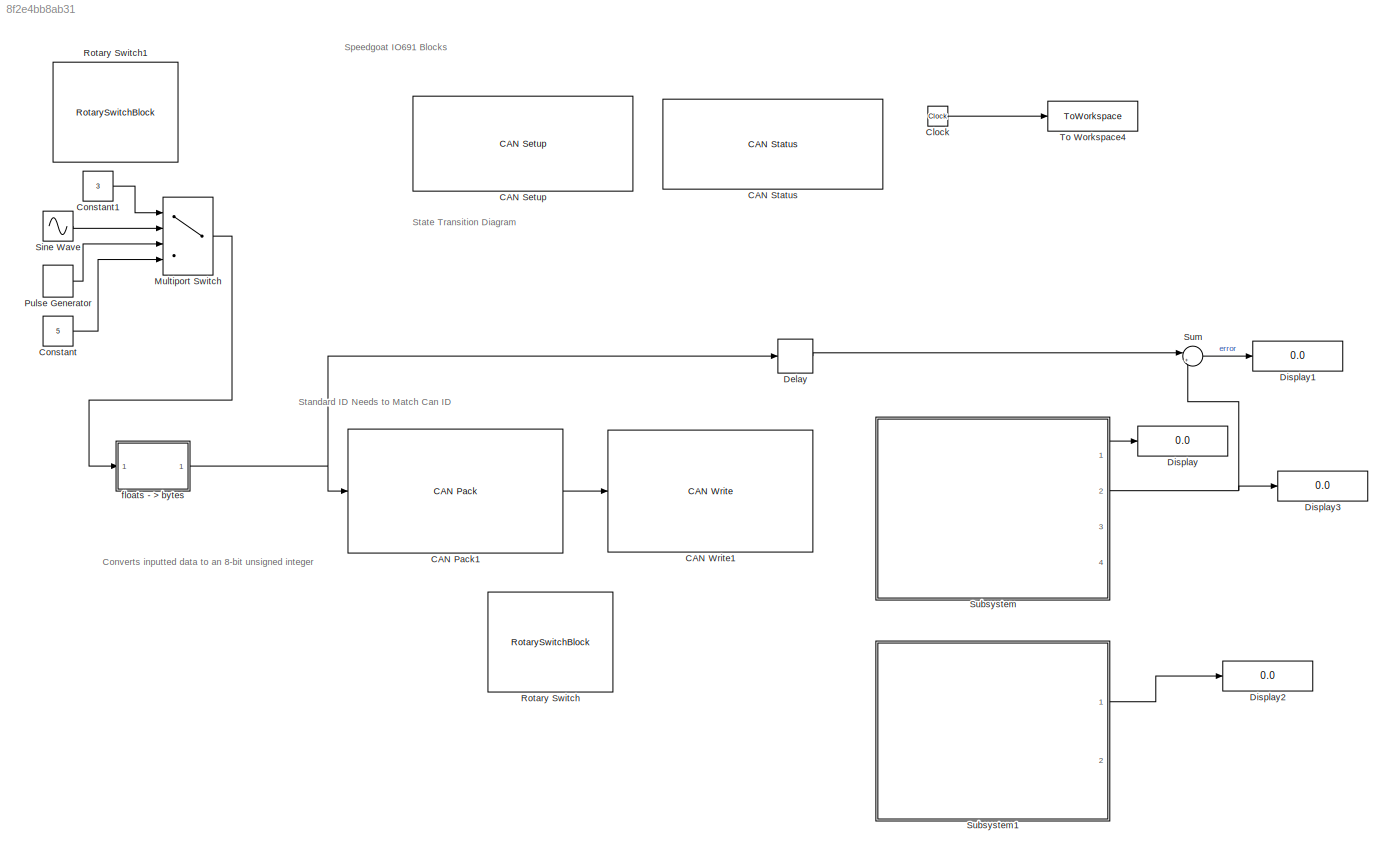
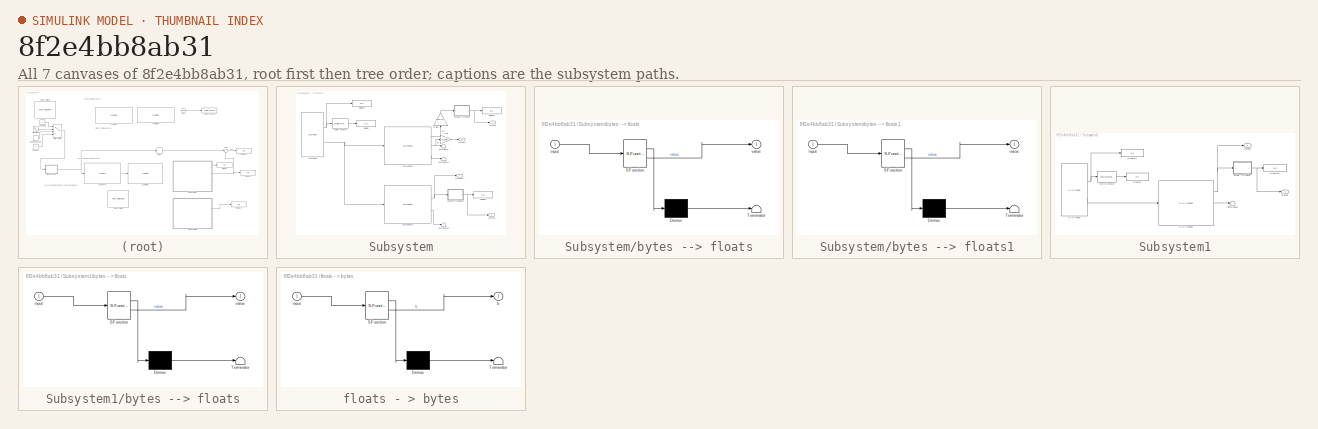
[diagram: thumbnail index - all 7 canvases of the model, root first then tree order]
MODEL slx_8f2e4bb8ab31
KIND model
CONFIG AbsTol = auto
CONFIG EnableMultiTasking = off
CONFIG FixedStep = .005
CONFIG MaxStep = auto
CONFIG MinStep = auto
CONFIG RelTol = 1e-6
CONFIG SampleTimeConstraint = Unconstrained
CONFIG SolverName = FixedStepAuto
CONFIG StartTime = 0.0
CONFIG StopTime = inf
WORKSPACE source: mxarray member
WORKSPACE DEV_ID = 3
BLOCK [Reference] CAN Pack1  REF=canmsglib/CAN Pack
  Ports = [1, 1]
  SourceBlock = canmsglib/CAN Pack
  SourceProductBaseCode = XP,ME,VN
  SourceType = CAN Pack
BLOCK [Reference] CAN Setup   REF=speedgoatlib_IO691/Legacy/CAN Setup 
  Ports = []
  SourceBlock = speedgoatlib_IO691/Legacy/CAN Setup
  SourceProductName = Simulink Real-Time: Speedgoat I/O Blockset
  SourceType = setup_IO691
BLOCK [Reference] CAN Status  REF=speedgoatlib_IO691/Legacy/CAN Status
  Ports = []
  SourceBlock = speedgoatlib_IO691/Legacy/CAN Status
  SourceProductName = Simulink Real-Time: Speedgoat I/O Blockset
  SourceType = status_IO691
  UserDataPersistent = on
BLOCK [Reference] CAN Write1  REF=speedgoatlib_IO691/Legacy/CAN Write
  Ports = [1]
  SourceBlock = speedgoatlib_IO691/Legacy/CAN Write
  SourceProductName = Simulink Real-Time: Speedgoat I/O Blockset
  SourceType = write_IO691
BLOCK [Clock] Clock
BLOCK [Constant] Constant
  Value = 5
BLOCK [Constant] Constant1
  Value = 3
BLOCK [Delay] Delay
  DelayLength = 1
  InputPortMap = u0
  Ports = [1, 1]
BLOCK [Display] Display
  Decimation = 1
  Ports = [1]
BLOCK [Display] Display1
  Decimation = 1
  Ports = [1]
BLOCK [Display] Display2
  Commented = on
  Decimation = 1
  Ports = [1]
BLOCK [Display] Display3
  Decimation = 1
  Ports = [1]
BLOCK [MultiPortSwitch] Multiport Switch
  InputSameDT = off
  Ports = [4, 1]
  SaturateOnIntegerOverflow = off
BLOCK [DiscretePulseGenerator] Pulse Generator
  Amplitude = 5
  Period = 5
  Ports = [0, 1]
  PulseType = Time based
BLOCK [RotarySwitchBlock] Rotary Switch
BLOCK [RotarySwitchBlock] Rotary Switch1
BLOCK [Sin] Sine Wave
  Amplitude = 10
  Ports = [0, 1]
  SampleTime = 0
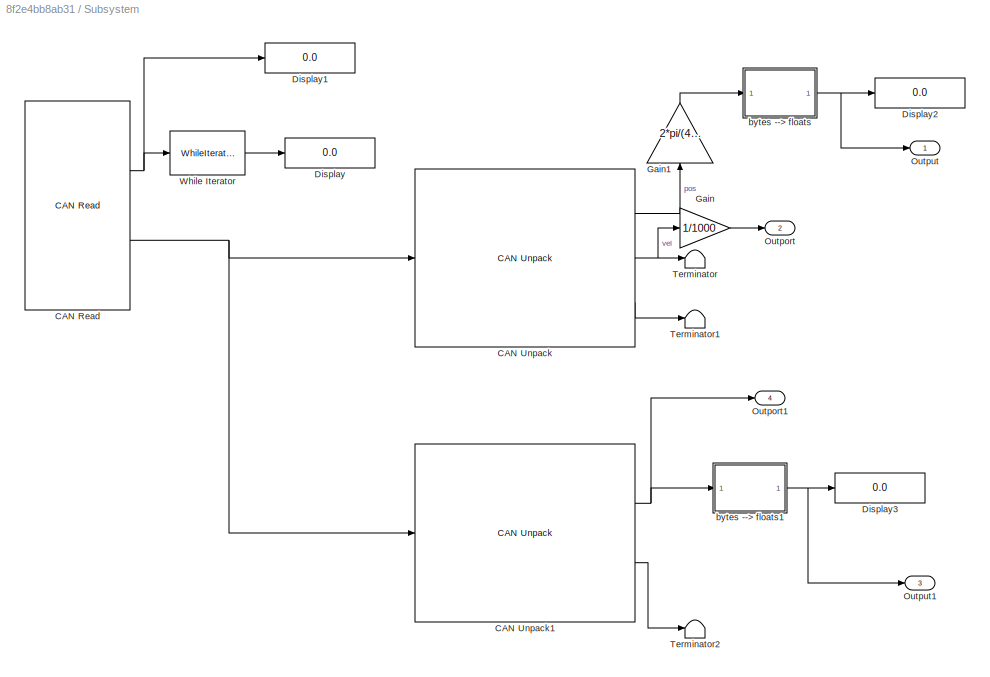
BLOCK [SubSystem] Subsystem
  Ports = [0, 4]
  RequestExecContextInheritance = off
BLOCK [Reference] Subsystem/CAN Read  REF=speedgoatlib_IO691/Legacy/CAN Read
  Ports = [0, 2]
  SourceBlock = speedgoatlib_IO691/Legacy/CAN Read
  SourceProductName = Simulink Real-Time: Speedgoat I/O Blockset
  SourceType = read_IO691
BLOCK [Reference] Subsystem/CAN Unpack  REF=canmsglib/CAN Unpack
  Ports = [1, 3]
  SourceBlock = canmsglib/CAN Unpack
  SourceProductBaseCode = XP,ME,VN
  SourceType = CAN Unpack
BLOCK [Reference] Subsystem/CAN Unpack1  REF=canmsglib/CAN Unpack
  Ports = [1, 2]
  SourceBlock = canmsglib/CAN Unpack
  SourceProductBaseCode = XP,ME,VN
  SourceType = CAN Unpack
BLOCK [Display] Subsystem/Display
  Decimation = 1
  Ports = [1]
BLOCK [Display] Subsystem/Display1
  Decimation = 1
  Ports = [1]
BLOCK [Display] Subsystem/Display2
  Decimation = 1
  Ports = [1]
BLOCK [Display] Subsystem/Display3
  Decimation = 1
  Ports = [1]
BLOCK [Gain] Subsystem/Gain
  Gain = 1/1000
BLOCK [Gain] Subsystem/Gain1
  Gain = 2*pi/(4*360)
  NameLocation = right
BLOCK [Outport] Subsystem/Outport
  Port = 2
BLOCK [Outport] Subsystem/Outport1
  Port = 4
BLOCK [Outport] Subsystem/Output
BLOCK [Outport] Subsystem/Output1
  Port = 3
BLOCK [Terminator] Subsystem/Terminator
BLOCK [Terminator] Subsystem/Terminator1
BLOCK [Terminator] Subsystem/Terminator2
BLOCK [WhileIterator] Subsystem/While Iterator
  MaxIters = -1
  Ports = [1, 1]
  ResetStates = reset
  ShowIterationPort = on
  WhileBlockType = do-while
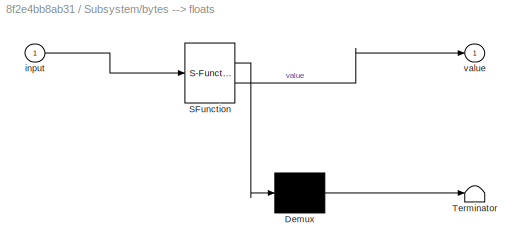
BLOCK [SubSystem] Subsystem/bytes --> floats
  Commented = through
  ErrorFcn = Stateflow.Translate.translate
  PermitHierarchicalResolution = ExplicitOnly
  Ports = [1, 1]
  RequestExecContextInheritance = off
  SFBlockType = MATLAB Function
  TreatAsAtomicUnit = on
BLOCK [Demux] Subsystem/bytes --> floats/ Demux 
  Outputs = 1
  Ports = [1, 1]
BLOCK [S-Function] Subsystem/bytes --> floats/ SFunction 
  EnableBusSupport = on
  FunctionName = sf_sfun
  PortCounts = [1 2]
  Ports = [1, 2]
  SFcnIsStateOwnerBlock = off
  SFunctionDeploymentMode = off
  Tag = Stateflow S-Function 1
BLOCK [Terminator] Subsystem/bytes --> floats/ Terminator 
BLOCK [Inport] Subsystem/bytes --> floats/input
BLOCK [Outport] Subsystem/bytes --> floats/value
BLOCK [SubSystem] Subsystem/bytes --> floats1
  ErrorFcn = Stateflow.Translate.translate
  PermitHierarchicalResolution = ExplicitOnly
  Ports = [1, 1]
  RequestExecContextInheritance = off
  SFBlockType = MATLAB Function
  TreatAsAtomicUnit = on
BLOCK [Demux] Subsystem/bytes --> floats1/ Demux 
  Outputs = 1
  Ports = [1, 1]
BLOCK [S-Function] Subsystem/bytes --> floats1/ SFunction 
  EnableBusSupport = on
  FunctionName = sf_sfun
  PortCounts = [1 2]
  Ports = [1, 2]
  SFcnIsStateOwnerBlock = off
  SFunctionDeploymentMode = off
  Tag = Stateflow S-Function 4
BLOCK [Terminator] Subsystem/bytes --> floats1/ Terminator 
BLOCK [Inport] Subsystem/bytes --> floats1/input
BLOCK [Outport] Subsystem/bytes --> floats1/value
BLOCK [SubSystem] Subsystem1
  Commented = on
  Ports = [0, 2]
  RequestExecContextInheritance = off
BLOCK [Reference] Subsystem1/CAN Read  REF=speedgoatlib_IO691/Legacy/CAN Read
  Ports = [0, 2]
  SourceBlock = speedgoatlib_IO691/Legacy/CAN Read
  SourceProductName = Simulink Real-Time: Speedgoat I/O Blockset
  SourceType = read_IO691
BLOCK [Reference] Subsystem1/CAN Unpack  REF=canmsglib/CAN Unpack
  Ports = [1, 3]
  SourceBlock = canmsglib/CAN Unpack
  SourceProductBaseCode = XP,ME,VN
  SourceType = CAN Unpack
BLOCK [Display] Subsystem1/Display
  Decimation = 1
  Ports = [1]
BLOCK [Display] Subsystem1/Display1
  Decimation = 1
  Ports = [1]
BLOCK [Display] Subsystem1/Display2
  Decimation = 1
  Ports = [1]
BLOCK [Outport] Subsystem1/Outport
  Port = 2
BLOCK [Outport] Subsystem1/Output
BLOCK [Terminator] Subsystem1/Terminator
BLOCK [WhileIterator] Subsystem1/While Iterator
  MaxIters = -1
  Ports = [1, 1]
  ResetStates = reset
  ShowIterationPort = on
  WhileBlockType = do-while
BLOCK [SubSystem] Subsystem1/bytes --> floats
  Commented = through
  ErrorFcn = Stateflow.Translate.translate
  PermitHierarchicalResolution = ExplicitOnly
  Ports = [1, 1]
  RequestExecContextInheritance = off
  SFBlockType = MATLAB Function
  TreatAsAtomicUnit = on
BLOCK [Demux] Subsystem1/bytes --> floats/ Demux 
  Outputs = 1
  Ports = [1, 1]
BLOCK [S-Function] Subsystem1/bytes --> floats/ SFunction 
  EnableBusSupport = on
  FunctionName = sf_sfun
  PortCounts = [1 2]
  Ports = [1, 2]
  SFcnIsStateOwnerBlock = off
  SFunctionDeploymentMode = off
  Tag = Stateflow S-Function 3
BLOCK [Terminator] Subsystem1/bytes --> floats/ Terminator 
BLOCK [Inport] Subsystem1/bytes --> floats/input
BLOCK [Outport] Subsystem1/bytes --> floats/value
BLOCK [Sum] Sum
  Inputs = |+-
  Ports = [2, 1]
BLOCK [ToWorkspace] To Workspace4
  FixptAsFi = on
  MaxDataPoints = inf
  Ports = [1]
  SampleTime = -1
  VariableName = timeout
BLOCK [SubSystem] floats - > bytes
  ErrorFcn = Stateflow.Translate.translate
  PermitHierarchicalResolution = ExplicitOnly
  Ports = [1, 1]
  RequestExecContextInheritance = off
  SFBlockType = MATLAB Function
  TreatAsAtomicUnit = on
BLOCK [Demux] floats - > bytes/ Demux 
  Outputs = 1
  Ports = [1, 1]
BLOCK [S-Function] floats - > bytes/ SFunction 
  EnableBusSupport = on
  FunctionName = sf_sfun
  PortCounts = [1 2]
  Ports = [1, 2]
  SFcnIsStateOwnerBlock = off
  SFunctionDeploymentMode = off
  Tag = Stateflow S-Function 2
BLOCK [Terminator] floats - > bytes/ Terminator 
BLOCK [Outport] floats - > bytes/b
BLOCK [Inport] floats - > bytes/input
ANNOTATION (root): State Transition Diagram
ANNOTATION (root): Converts inputted data to an 8-bit unsigned integer
ANNOTATION (root): Speedgoat IO691 Blocks
ANNOTATION (root): Standard ID Needs to Match Can ID
LINE CAN Pack1:1 -> CAN Write1:1
LINE Clock:1 -> To Workspace4:1
LINE Constant1:1 -> Multiport Switch:1
LINE Constant:1 -> Multiport Switch:4
LINE Delay:1 -> Sum:1
LINE Multiport Switch:1 -> floats - > bytes:1
LINE Pulse Generator:1 -> Multiport Switch:3
LINE Sine Wave:1 -> Multiport Switch:2
NET Subsystem/CAN Read:1 -> Subsystem/Display1:1, Subsystem/While Iterator:1
NET Subsystem/CAN Read:2 -> Subsystem/CAN Unpack1:1, Subsystem/CAN Unpack:1
NET Subsystem/CAN Unpack1:1 -> Subsystem/Outport1:1, Subsystem/bytes --> floats1:1
LINE Subsystem/CAN Unpack1:2 -> Subsystem/Terminator2:1
LINE Subsystem/CAN Unpack:1 -> Subsystem/Gain1:1
NET Subsystem/CAN Unpack:2 -> Subsystem/Gain:1, Subsystem/Terminator:1
LINE Subsystem/CAN Unpack:3 -> Subsystem/Terminator1:1
LINE Subsystem/Gain1:1 -> Subsystem/bytes --> floats:1
LINE Subsystem/Gain:1 -> Subsystem/Outport:1
LINE Subsystem/While Iterator:1 -> Subsystem/Display:1
NET Subsystem/bytes --> floats1:1 -> Subsystem/Display3:1, Subsystem/Output1:1
NET Subsystem/bytes --> floats:1 -> Subsystem/Display2:1, Subsystem/Output:1
NET Subsystem1/CAN Read:1 -> Subsystem1/Display1:1, Subsystem1/While Iterator:1
LINE Subsystem1/CAN Read:2 -> Subsystem1/CAN Unpack:1
NET Subsystem1/CAN Unpack:1 -> Subsystem1/Outport:1, Subsystem1/bytes --> floats:1
LINE Subsystem1/CAN Unpack:2 -> Subsystem1/Terminator:1
LINE Subsystem1/While Iterator:1 -> Subsystem1/Display:1
NET Subsystem1/bytes --> floats:1 -> Subsystem1/Display2:1, Subsystem1/Output:1
LINE Subsystem1:1 -> Display2:1
LINE Subsystem:1 -> Display:1
NET Subsystem:2 -> Display3:1, Sum:2
LINE Sum:1 -> Display1:1
NET floats - > bytes:1 -> CAN Pack1:1, Delay:1
note: NET lines group one-source signal fan-out (src -> all destinations, sorted); 1:1 wires keep LINE
CHART floats - > bytes states=1 transitions=1
  STATE_LABEL 'eML_blk_kernel()'
  STATE_LABEL "SCRIPT:\nfunction b = fcn(input)\n\n\n% P_MIN  =-95.5;  % [rad]\n% P_MAX  = 95.5;  % [rad]\ninput_min = -10;\ninput_max = 10;\n\n% position = floor((max(min(position,P_MAX) ,P_MIN)  - P_MIN )*65535/(P_MAX  - P_MIN));\nvalue = floor((max(min(input, input_max), input_min) - input_min)*255/(input_max - input_min));\n\nvalue_bin = dec2bin(value);\n%repmat('0', 1, 8-length(value_bin));\nvalue_bin = [repmat('0', 1, 8...<+116ch>"
CHART Subsystem1/bytes --> floats states=1 transitions=1
  STATE_LABEL 'eML_blk_kernel()'
  STATE_LABEL 'SCRIPT:\nfunction value = fcn(input)\n\ninput_min = -10;\ninput_max = 10;\n\n\n% P_MIN  =-95.5;  % [rad]\n% P_MAX  = 95.5;  % [rad]\n% V_MIN  =-45;    % [rad/s]\n% V_MAX  = 45;    % [rad/s]\n% I_MIN  =-40;    % []\n% I_MAX  = 40;    % []\n\nvalue = double(input)*(input_max - input_min)/255 + input_min;\n\n\n% position = position*(P_MAX  - P_MIN)/65535+ P_MIN;\n% velocity = velocity*(V_MAX  - V_MIN)/4095 + V_MIN;\n% ...<+47ch>'  <repeated x3 — deduplicated; at blocks: bytes --> floats, bytes --> floats1>
CHART Subsystem/bytes --> floats1 states=1 transitions=1
  STATE_LABEL 'eML_blk_kernel()'
CHART Subsystem/bytes --> floats states=1 transitions=1
  STATE_LABEL 'eML_blk_kernel()'
CHART  states=0 transitions=0
CHART  states=0 transitions=0
CHART  states=0 transitions=0
CHART  states=0 transitions=0
